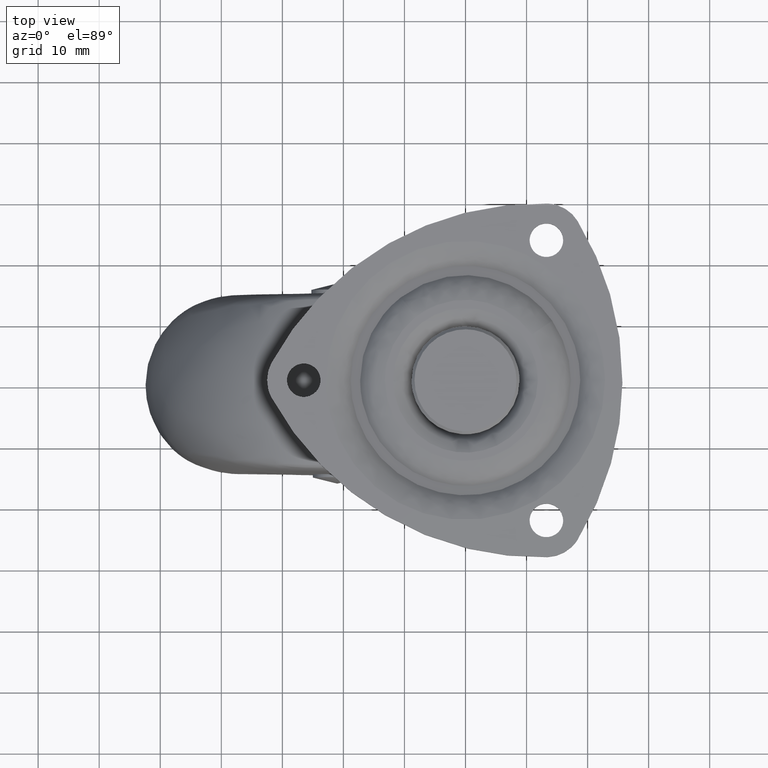
[diagram: clean part render]
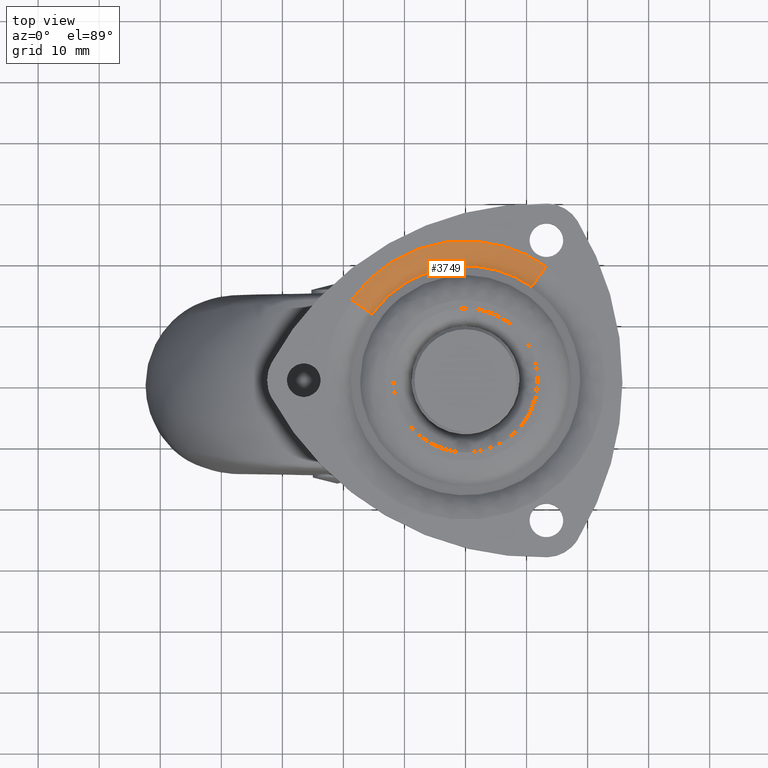
[diagram: same view with one face highlighted and labeled with its STEP entity id]
A machine part, top view. The second image highlights one B-rep face of the part: STEP entity #3749.
In plain terms, the highlighted face is a freeform B-spline surface patch.
Its self-contained STEP definition (entity closure, byte-faithful):
#3571=CARTESIAN_POINT('',(10.858366824514970,15.347177913704069,-2.068774999609906));
#3572=VERTEX_POINT('',#3571);
#3605=CARTESIAN_POINT('',(-15.347177913704069,10.858366824514979,-2.068774999609906));
#3606=VERTEX_POINT('',#3605);
#3620=CARTESIAN_POINT('',(-18.653898074170279,13.197922714952650,-1.032646E-015));
#3621=VERTEX_POINT('',#3620);
#3622=CARTESIAN_POINT('',(-15.347177913704074,10.858366824514977,-2.068774999609906));
#3623=CARTESIAN_POINT('',(-16.569276744780193,11.723020735346051,-1.635654E-009));
#3624=CARTESIAN_POINT('',(-18.653898074170279,13.197922714952647,-1.032646E-015));
#3632=(BOUNDED_CURVE()B_SPLINE_CURVE(2,(#3622,#3623,#3624),.UNSPECIFIED.,.F.,.U.)B_SPLINE_CURVE_WITH_KNOTS((3,3),(-1.607795408991216,-0.394741634383674),.UNSPECIFIED.)CURVE()GEOMETRIC_REPRESENTATION_ITEM()RATIONAL_B_SPLINE_CURVE((0.914274471591056,0.814042982540488,0.913856087984518))REPRESENTATION_ITEM(''));
#3633=EDGE_CURVE('',#3606,#3621,#3632,.T.);
#3667=CARTESIAN_POINT('',(13.197922714952650,18.653898074170279,-9.719018E-016));
#3668=VERTEX_POINT('',#3667);
#3682=CARTESIAN_POINT('',(10.858366824514974,15.347177913704076,-2.068774999609906));
#3683=CARTESIAN_POINT('',(11.723020735346051,16.569276744780197,-1.635648E-009));
#3684=CARTESIAN_POINT('',(13.197922714952648,18.653898074170286,-9.719018E-016));
#3692=(BOUNDED_CURVE()B_SPLINE_CURVE(2,(#3682,#3683,#3684),.UNSPECIFIED.,.F.,.U.)B_SPLINE_CURVE_WITH_KNOTS((3,3),(-1.607795408991217,-0.394741634383671),.UNSPECIFIED.)CURVE()GEOMETRIC_REPRESENTATION_ITEM()RATIONAL_B_SPLINE_CURVE((0.914274471591056,0.814042982540488,0.913856087984518))REPRESENTATION_ITEM(''));
#3693=EDGE_CURVE('',#3572,#3668,#3692,.T.);
#3698=CARTESIAN_POINT('',(-15.242494929461932,10.784301986674290,-2.254683342323580));
#3699=CARTESIAN_POINT('',(-4.458192942787635,26.026796916136210,-2.254683342323581));
#3700=CARTESIAN_POINT('',(10.784301986674290,15.242494929461932,-2.254683342323580));
#3701=CARTESIAN_POINT('',(-16.517865691069851,11.686646616067589,0.123447250596855));
#3702=CARTESIAN_POINT('',(-4.831219075002254,28.204512307137435,0.123447250596855));
#3703=CARTESIAN_POINT('',(11.686646616067589,16.517865691069851,0.123447250596855));
#3704=CARTESIAN_POINT('',(-18.838305627037304,13.328393923658499,-0.005105494720848));
#3705=CARTESIAN_POINT('',(-5.509911703378802,32.166699550695803,-0.005105494720848));
#3706=CARTESIAN_POINT('',(13.328393923658499,18.838305627037304,-0.005105494720848));
#3714=(BOUNDED_SURFACE()B_SPLINE_SURFACE(2,2,((#3698,#3701,#3704),(#3699,#3702,#3705),(#3700,#3703,#3706)),.UNSPECIFIED.,.F.,.F.,.U.)B_SPLINE_SURFACE_WITH_KNOTS((3,3),(3,3),(0.0,38.234504470992647),(0.0,5.292320818242970),.UNSPECIFIED.)GEOMETRIC_REPRESENTATION_ITEM()RATIONAL_B_SPLINE_SURFACE(((0.924786723512103,0.803551620650201,0.924326559781357),(0.653922963346697,0.568196799995197,0.653597578452231),(0.924786723512103,0.803551620650201,0.924326559781357)))REPRESENTATION_ITEM('')SURFACE());
#3715=CARTESIAN_POINT('',(-15.347177913704076,10.858366824514977,-2.068774999609906));
#3716=CARTESIAN_POINT('',(-9.728349051778992,18.799999999999997,-2.068775000000000));
#3717=CARTESIAN_POINT('',(0.0,18.800000000000001,-2.068775000000000));
#3718=CARTESIAN_POINT('',(5.978160093211569,18.800000000000004,-2.068775000000001));
#3719=CARTESIAN_POINT('',(10.858366824514974,15.347177913704076,-2.068774999609906));
#3727=(BOUNDED_CURVE()B_SPLINE_CURVE(2,(#3715,#3716,#3717,#3718,#3719),.UNSPECIFIED.,.F.,.U.)B_SPLINE_CURVE_WITH_KNOTS((3,2,3),(0.099340826588552,0.250000000000000,0.349340826588552),.UNSPECIFIED.)CURVE()GEOMETRIC_REPRESENTATION_ITEM()RATIONAL_B_SPLINE_CURVE((0.859724235322282,0.823491799022987,1.0,0.883614982163560,0.859724235322282))REPRESENTATION_ITEM(''));
#3728=EDGE_CURVE('',#3606,#3572,#3727,.T.);
#3729=ORIENTED_EDGE('',*,*,#3728,.T.);
#3730=ORIENTED_EDGE('',*,*,#3693,.T.);
#3731=CARTESIAN_POINT('',(-18.653898074170282,13.197922714952650,-1.032646E-015));
#3732=CARTESIAN_POINT('',(-11.824430046798538,22.850669080457546,0.0));
#3733=CARTESIAN_POINT('',(0.0,22.850669080457550,0.0));
#3734=CARTESIAN_POINT('',(7.266221170284061,22.850669080457543,0.0));
#3735=CARTESIAN_POINT('',(13.197922714952648,18.653898074170279,-9.719018E-016));
#3743=(BOUNDED_CURVE()B_SPLINE_CURVE(2,(#3731,#3732,#3733,#3734,#3735),.UNSPECIFIED.,.F.,.U.)B_SPLINE_CURVE_WITH_KNOTS((3,2,3),(0.099340826589429,0.250000000000000,0.349340826589430),.UNSPECIFIED.)CURVE()GEOMETRIC_REPRESENTATION_ITEM()RATIONAL_B_SPLINE_CURVE((0.859724235321860,0.823491799024015,1.0,0.883614982162532,0.859724235321860))REPRESENTATION_ITEM(''));
#3744=EDGE_CURVE('',#3621,#3668,#3743,.T.);
#3745=ORIENTED_EDGE('',*,*,#3744,.F.);
#3746=ORIENTED_EDGE('',*,*,#3633,.F.);
#3747=EDGE_LOOP('',(#3729,#3730,#3745,#3746));
#3748=FACE_OUTER_BOUND('',#3747,.T.);
#3749=ADVANCED_FACE('',(#3748),#3714,.T.);